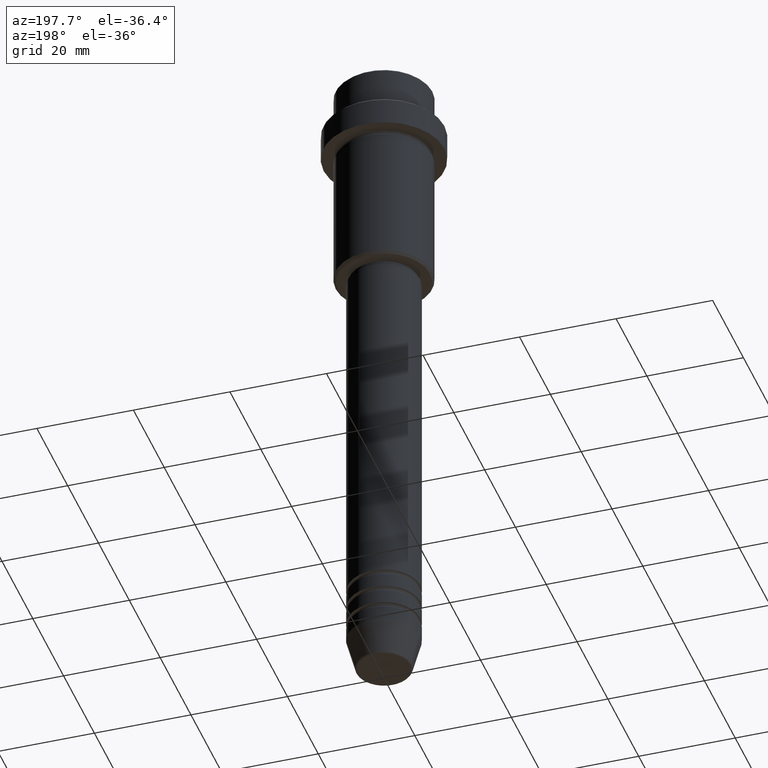
[diagram: clean part render]
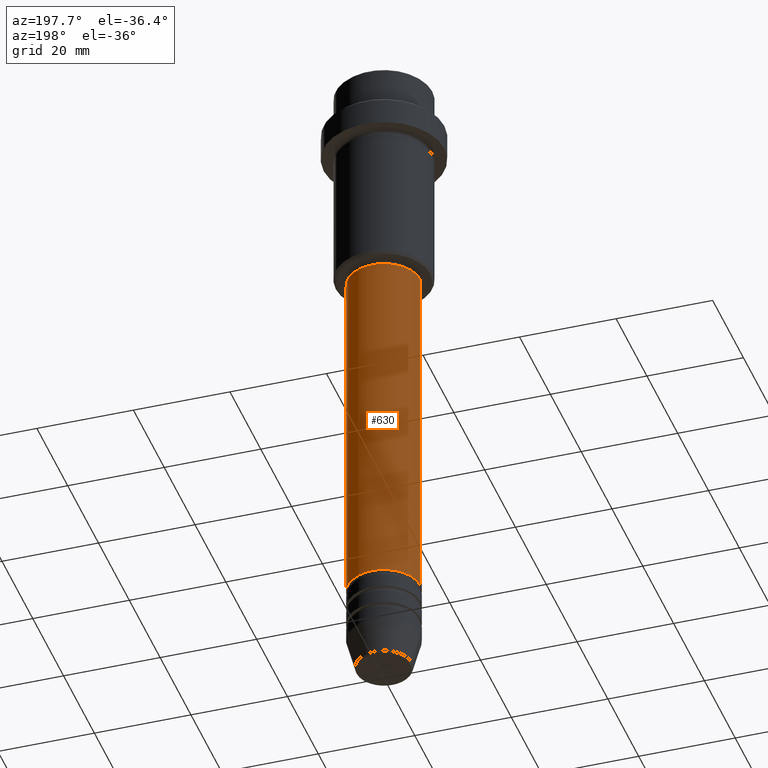
[diagram: same view with one face highlighted and labeled with its STEP entity id]
A machine part, auxiliary view. The second image highlights one B-rep face of the part: STEP entity #630.
In plain terms, the highlighted cylindrical surface (partial cylindrical patch) has radius 7.5 mm, axis along (-0, -0, 1).
Its self-contained STEP definition (entity closure, byte-faithful):
#9 = VERTEX_POINT ( 'NONE', #1097 ) ;
#40 = VECTOR ( 'NONE', #674, 1000.000000000000000 ) ;
#102 = ORIENTED_EDGE ( 'NONE', *, *, #440, .F. ) ;
#108 = AXIS2_PLACEMENT_3D ( 'NONE', #255, #148, #1022 ) ;
#143 = CYLINDRICAL_SURFACE ( 'NONE', #108, 7.500000000000000000 ) ;
#148 = DIRECTION ( 'NONE',  ( -0.000000000000000000, -0.000000000000000000, 1.000000000000000000 ) ) ;
#170 = DIRECTION ( 'NONE',  ( 1.000000000000000000, 0.000000000000000000, 0.000000000000000000 ) ) ;
#194 = CARTESIAN_POINT ( 'NONE',  ( 0.000000000000000000, 0.000000000000000000, -46.00000000000001421 ) ) ;
#255 = CARTESIAN_POINT ( 'NONE',  ( 0.000000000000000000, 0.000000000000000000, 0.000000000000000000 ) ) ;
#287 = AXIS2_PLACEMENT_3D ( 'NONE', #194, #644, #401 ) ;
#313 = AXIS2_PLACEMENT_3D ( 'NONE', #619, #1259, #170 ) ;
#401 = DIRECTION ( 'NONE',  ( 1.000000000000000000, 0.000000000000000000, 0.000000000000000000 ) ) ;
#440 = EDGE_CURVE ( 'NONE', #1406, #1308, #846, .T. ) ;
#462 = CARTESIAN_POINT ( 'NONE',  ( 7.500000000000000000, 0.000000000000000000, 0.000000000000000000 ) ) ;
#463 = ORIENTED_EDGE ( 'NONE', *, *, #559, .F. ) ;
#470 = FACE_OUTER_BOUND ( 'NONE', #664, .T. ) ;
#559 = EDGE_CURVE ( 'NONE', #685, #1406, #796, .T. ) ;
#619 = CARTESIAN_POINT ( 'NONE',  ( 0.000000000000000000, 0.000000000000000000, -120.9999999999999005 ) ) ;
#630 = ADVANCED_FACE ( 'NONE', ( #470 ), #143, .T. ) ;
#644 = DIRECTION ( 'NONE',  ( -0.000000000000000000, -0.000000000000000000, 1.000000000000000000 ) ) ;
#664 = EDGE_LOOP ( 'NONE', ( #1286, #906, #102, #463 ) ) ;
#674 = DIRECTION ( 'NONE',  ( -0.000000000000000000, -0.000000000000000000, 1.000000000000000000 ) ) ;
#685 = VERTEX_POINT ( 'NONE', #1366 ) ;
#796 = LINE ( 'NONE', #462, #40 ) ;
#803 = EDGE_CURVE ( 'NONE', #685, #9, #1316, .T. ) ;
#810 = CARTESIAN_POINT ( 'NONE',  ( 7.500000000000000000, 0.000000000000000000, -46.00000000000001421 ) ) ;
#846 = CIRCLE ( 'NONE', #287, 7.500000000000000000 ) ;
#867 = EDGE_CURVE ( 'NONE', #9, #1308, #1200, .T. ) ;
#877 = CARTESIAN_POINT ( 'NONE',  ( -7.500000000000000000, 9.184850993605147944E-16, 0.000000000000000000 ) ) ;
#906 = ORIENTED_EDGE ( 'NONE', *, *, #867, .T. ) ;
#1022 = DIRECTION ( 'NONE',  ( 1.000000000000000000, 0.000000000000000000, 0.000000000000000000 ) ) ;
#1097 = CARTESIAN_POINT ( 'NONE',  ( -7.500000000000000000, 9.184850993605147944E-16, -120.9999999999999005 ) ) ;
#1152 = CARTESIAN_POINT ( 'NONE',  ( -7.500000000000000000, 9.184850993605147944E-16, -46.00000000000001421 ) ) ;
#1181 = DIRECTION ( 'NONE',  ( -0.000000000000000000, -0.000000000000000000, 1.000000000000000000 ) ) ;
#1200 = LINE ( 'NONE', #877, #1298 ) ;
#1259 = DIRECTION ( 'NONE',  ( -0.000000000000000000, -0.000000000000000000, 1.000000000000000000 ) ) ;
#1286 = ORIENTED_EDGE ( 'NONE', *, *, #803, .T. ) ;
#1298 = VECTOR ( 'NONE', #1181, 1000.000000000000000 ) ;
#1308 = VERTEX_POINT ( 'NONE', #1152 ) ;
#1316 = CIRCLE ( 'NONE', #313, 7.500000000000000000 ) ;
#1366 = CARTESIAN_POINT ( 'NONE',  ( 7.500000000000000000, 0.000000000000000000, -120.9999999999999005 ) ) ;
#1406 = VERTEX_POINT ( 'NONE', #810 ) ;